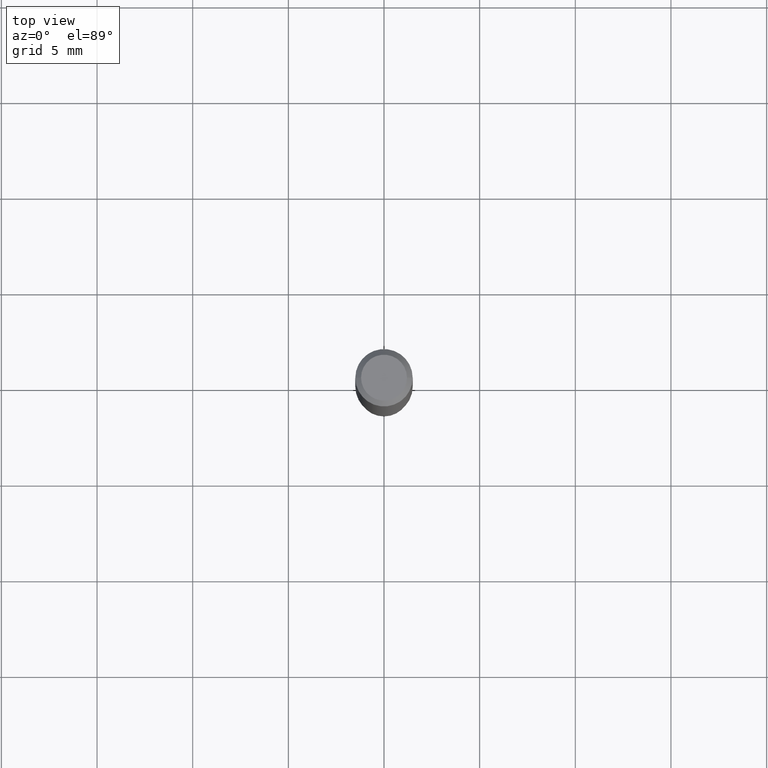
[diagram: clean part render]
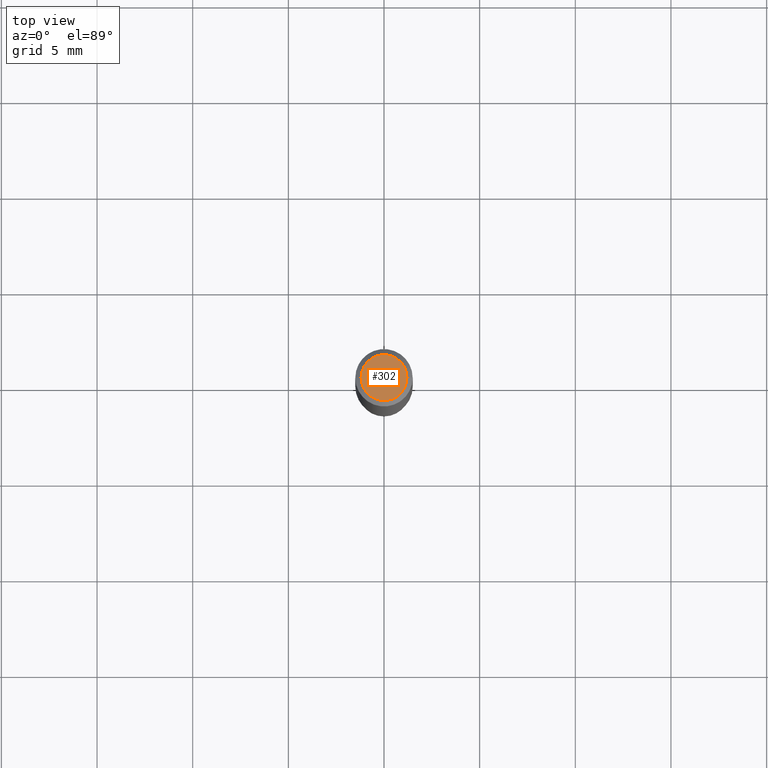
[diagram: same view with one face highlighted and labeled with its STEP entity id]
A machine part, top view. The second image highlights one B-rep face of the part: STEP entity #302.
In plain terms, the highlighted planar face has unit normal (0, -0, -1).
Its self-contained STEP definition (entity closure, byte-faithful):
#24 = ORIENTED_EDGE ( 'NONE', *, *, #144, .T. ) ;
#31 = VERTEX_POINT ( 'NONE', #146 ) ;
#77 = CARTESIAN_POINT ( 'NONE',  ( 0.04724000000000000421, -3.852183633974369345E-16, -3.380025165621689721E-19 ) ) ;
#86 = AXIS2_PLACEMENT_3D ( 'NONE', #255, #98, #431 ) ;
#91 = VERTEX_POINT ( 'NONE', #77 ) ;
#98 = DIRECTION ( 'NONE',  ( -2.445468806185136597E-29, 3.491481338843145583E-15, 1.000000000000000000 ) ) ;
#99 = EDGE_LOOP ( 'NONE', ( #169, #24 ) ) ;
#144 = EDGE_CURVE ( 'NONE', #91, #31, #405, .T. ) ;
#146 = CARTESIAN_POINT ( 'NONE',  ( -0.04724000000000000421, 3.504923541997677355E-16, -3.380025165670481712E-19 ) ) ;
#150 = CARTESIAN_POINT ( 'NONE',  ( 8.265746106709734507E-48, -1.180129479067563789E-33, -3.380025165646692144E-19 ) ) ;
#166 = CARTESIAN_POINT ( 'NONE',  ( 4.132873053354867254E-48, -5.900647395337818946E-34, -1.690012582823346072E-19 ) ) ;
#169 = ORIENTED_EDGE ( 'NONE', *, *, #369, .T. ) ;
#241 = FACE_OUTER_BOUND ( 'NONE', #99, .T. ) ;
#255 = CARTESIAN_POINT ( 'NONE',  ( 8.265746106709734507E-48, -1.180129479067563789E-33, -3.380025165646692144E-19 ) ) ;
#272 = DIRECTION ( 'NONE',  ( 2.438088387897960049E-29, -3.491481338843145188E-15, -1.000000000000000000 ) ) ;
#298 = DIRECTION ( 'NONE',  ( 1.000000000000000000, -6.982962677686266711E-15, 4.876185090822587894E-29 ) ) ;
#300 = CIRCLE ( 'NONE', #86, 0.04724000000000000421 ) ;
#302 = ADVANCED_FACE ( 'NONE', ( #241 ), #312, .F. ) ;
#312 = PLANE ( 'NONE',  #397 ) ;
#369 = EDGE_CURVE ( 'NONE', #31, #91, #300, .T. ) ;
#377 = DIRECTION ( 'NONE',  ( -2.445468806185136597E-29, 3.491481338843145583E-15, 1.000000000000000000 ) ) ;
#397 = AXIS2_PLACEMENT_3D ( 'NONE', #166, #272, #467 ) ;
#405 = CIRCLE ( 'NONE', #448, 0.04724000000000000421 ) ;
#431 = DIRECTION ( 'NONE',  ( 1.000000000000000000, -6.982962677686266711E-15, 4.876185090822587894E-29 ) ) ;
#448 = AXIS2_PLACEMENT_3D ( 'NONE', #150, #377, #298 ) ;
#467 = DIRECTION ( 'NONE',  ( -1.000000000000000000, 6.982962677686265922E-15, -4.876176775795935793E-29 ) ) ;